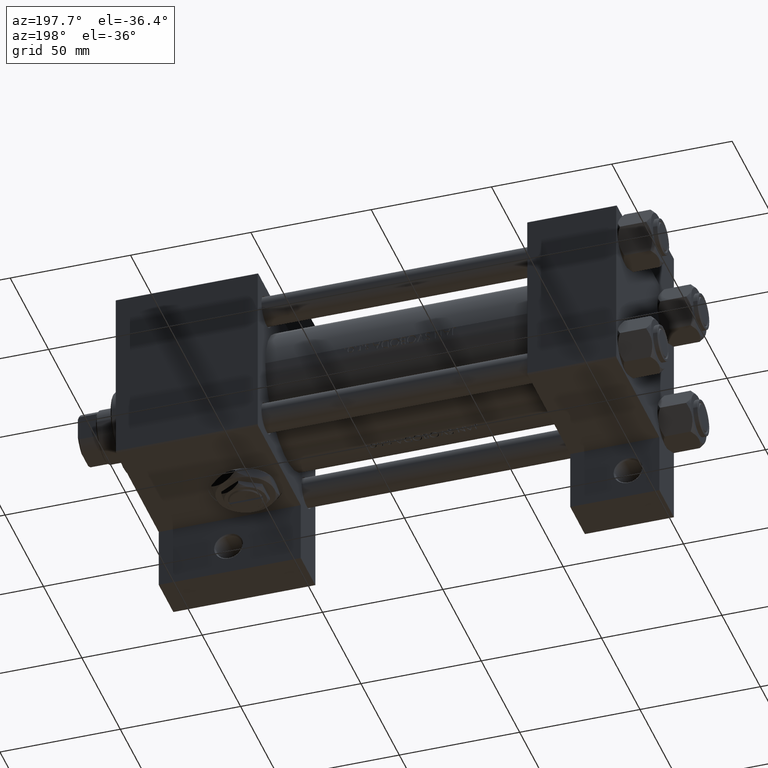
[diagram: clean part render]
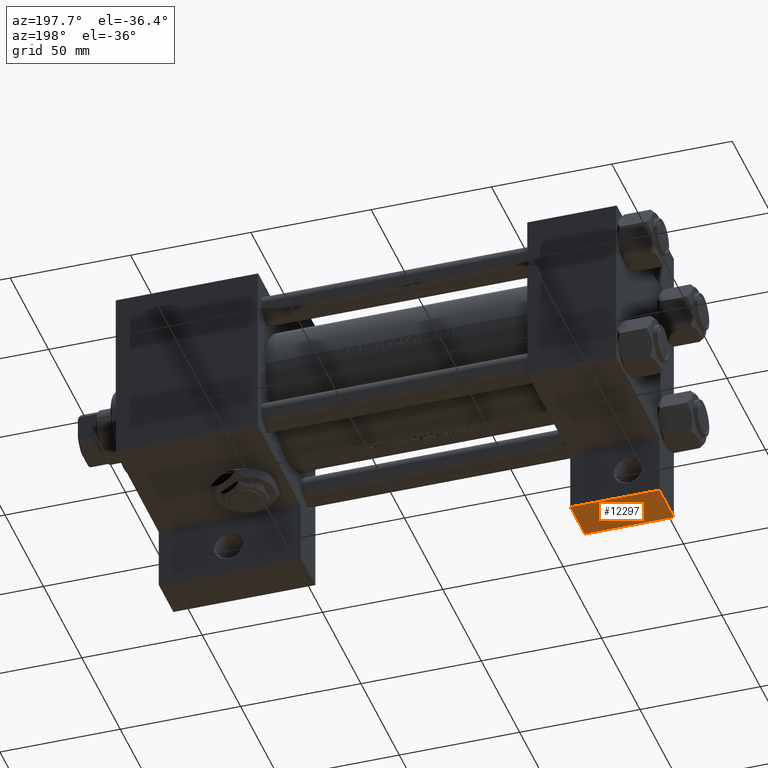
[diagram: same view with one face highlighted and labeled with its STEP entity id]
A machine part, auxiliary view. The second image highlights one B-rep face of the part: STEP entity #12297.
In plain terms, the highlighted planar face has unit normal (0, -0, -1).
Its self-contained STEP definition (entity closure, byte-faithful):
#96 = LINE ( 'NONE', #44921, #31281 ) ;
#2275 = DIRECTION ( 'NONE',  ( 0.000000000000000000, 1.734723475976806848E-16, 1.000000000000000000 ) ) ;
#2775 = LINE ( 'NONE', #6995, #11585 ) ;
#6995 = CARTESIAN_POINT ( 'NONE',  ( 37.00000000000001421, 63.50000000000001421, 26.72167621838005047 ) ) ;
#7328 = DIRECTION ( 'NONE',  ( 1.000000000000000000, 0.000000000000000000, 0.000000000000000000 ) ) ;
#8372 = ORIENTED_EDGE ( 'NONE', *, *, #25752, .T. ) ;
#10244 = DIRECTION ( 'NONE',  ( 0.000000000000000000, 1.000000000000000000, -1.734723475976806848E-16 ) ) ;
#11585 = VECTOR ( 'NONE', #17968, 1000.000000000000000 ) ;
#11606 = CARTESIAN_POINT ( 'NONE',  ( 1.595073532467135441E-14, 63.50000000000000000, -18.50000000000000355 ) ) ;
#11644 = VERTEX_POINT ( 'NONE', #36343 ) ;
#12297 = ADVANCED_FACE ( 'NONE', ( #28683 ), #47863, .T. ) ;
#14369 = EDGE_LOOP ( 'NONE', ( #32123, #8372, #43527, #29105 ) ) ;
#17724 = CARTESIAN_POINT ( 'NONE',  ( 1.595073532467135441E-14, 63.50000000000001421, 26.72167621838005047 ) ) ;
#17968 = DIRECTION ( 'NONE',  ( 0.000000000000000000, -1.734723475976806848E-16, -1.000000000000000000 ) ) ;
#20848 = EDGE_CURVE ( 'NONE', #29321, #31866, #48089, .T. ) ;
#21220 = VECTOR ( 'NONE', #7328, 1000.000000000000000 ) ;
#21799 = LINE ( 'NONE', #41449, #21220 ) ;
#22761 = DIRECTION ( 'NONE',  ( -1.000000000000000000, 0.000000000000000000, 0.000000000000000000 ) ) ;
#25752 = EDGE_CURVE ( 'NONE', #11644, #35417, #2775, .T. ) ;
#27820 = EDGE_CURVE ( 'NONE', #31866, #35417, #21799, .T. ) ;
#27954 = VECTOR ( 'NONE', #41821, 1000.000000000000000 ) ;
#28683 = FACE_OUTER_BOUND ( 'NONE', #14369, .T. ) ;
#29105 = ORIENTED_EDGE ( 'NONE', *, *, #20848, .F. ) ;
#29321 = VERTEX_POINT ( 'NONE', #11606 ) ;
#31123 = CARTESIAN_POINT ( 'NONE',  ( 1.595073532467135441E-14, 63.50000000000001421, 26.72167621838005047 ) ) ;
#31281 = VECTOR ( 'NONE', #22761, 1000.000000000000000 ) ;
#31866 = VERTEX_POINT ( 'NONE', #40546 ) ;
#32123 = ORIENTED_EDGE ( 'NONE', *, *, #47001, .F. ) ;
#35417 = VERTEX_POINT ( 'NONE', #43495 ) ;
#36343 = CARTESIAN_POINT ( 'NONE',  ( 37.00000000000001421, 63.50000000000000000, -18.50000000000000355 ) ) ;
#40546 = CARTESIAN_POINT ( 'NONE',  ( 1.595073532467135441E-14, 63.50000000000000000, -37.50000000000002132 ) ) ;
#41449 = CARTESIAN_POINT ( 'NONE',  ( 1.595073532467135441E-14, 63.50000000000000000, -37.50000000000002132 ) ) ;
#41821 = DIRECTION ( 'NONE',  ( 0.000000000000000000, -1.734723475976806848E-16, -1.000000000000000000 ) ) ;
#43495 = CARTESIAN_POINT ( 'NONE',  ( 37.00000000000001421, 63.50000000000000000, -37.50000000000002132 ) ) ;
#43527 = ORIENTED_EDGE ( 'NONE', *, *, #27820, .F. ) ;
#44921 = CARTESIAN_POINT ( 'NONE',  ( 1.595073532467135441E-14, 63.50000000000000000, -18.50000000000000355 ) ) ;
#47001 = EDGE_CURVE ( 'NONE', #11644, #29321, #96, .T. ) ;
#47863 = PLANE ( 'NONE',  #48476 ) ;
#48089 = LINE ( 'NONE', #31123, #27954 ) ;
#48476 = AXIS2_PLACEMENT_3D ( 'NONE', #17724, #10244, #2275 ) ;